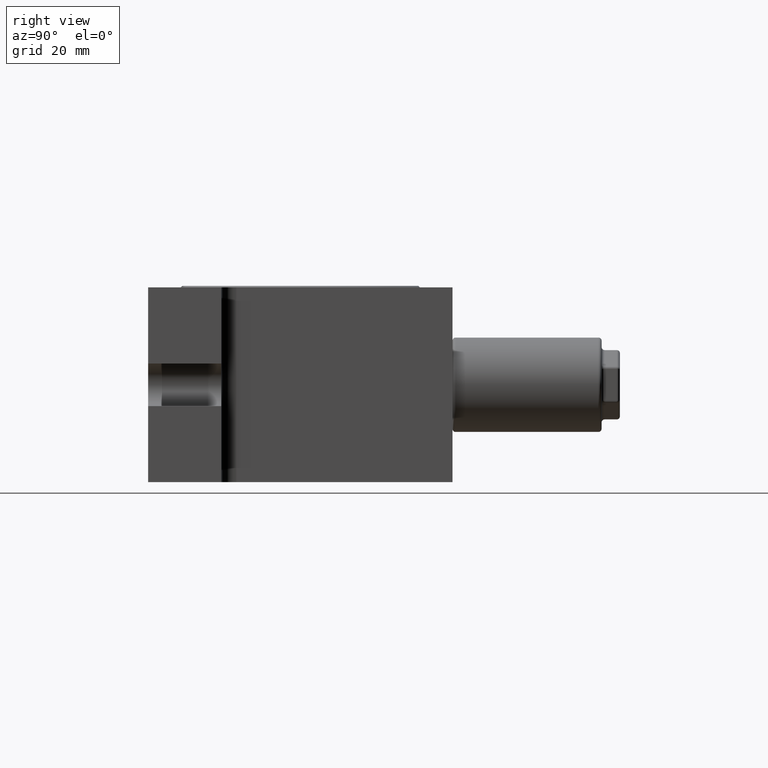
[diagram: clean part render]
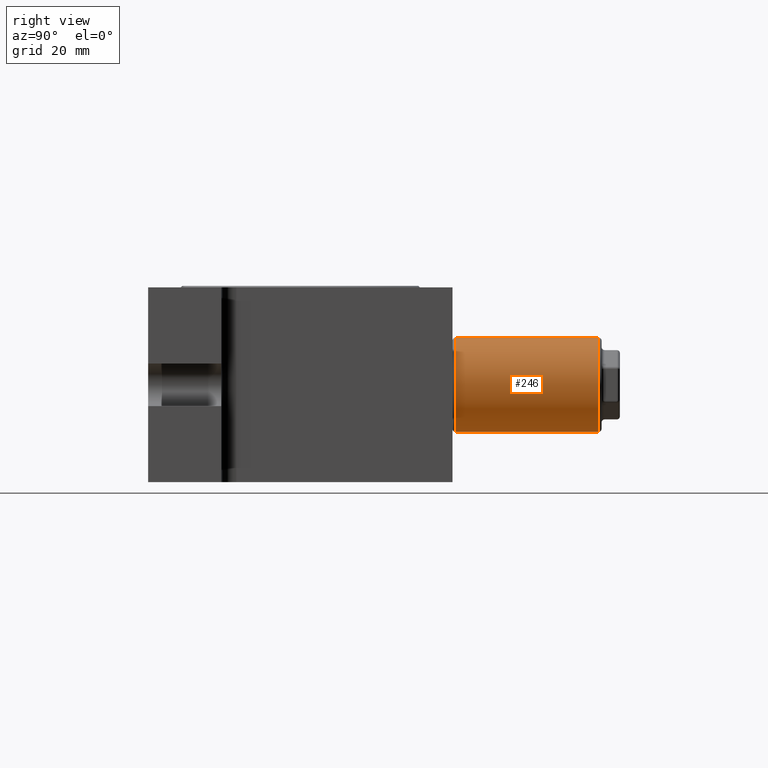
[diagram: same view with one face highlighted and labeled with its STEP entity id]
A machine part, right view. The second image highlights one B-rep face of the part: STEP entity #246.
In plain terms, the highlighted cylindrical surface (partial cylindrical patch) has radius 7.75 mm, axis along (0, -1, -0).
Its self-contained STEP definition (entity closure, byte-faithful):
#29 = CARTESIAN_POINT ( 'NONE',  ( 14.24999999999999800, 49.50000000000002100, -7.750000000000010700 ) ) ;
#123 = EDGE_CURVE ( 'NONE', #7818, #2985, #2297, .T. ) ;
#246 = ADVANCED_FACE ( 'NONE', ( #8966 ), #6481, .T. ) ;
#342 = DIRECTION ( 'NONE',  ( 5.228563909572968500E-017, -1.000000000000000000, -2.111368100172858900E-017 ) ) ;
#414 = DIRECTION ( 'NONE',  ( 2.238352872228137200E-016, 0.0000000000000000000, -1.000000000000000000 ) ) ;
#516 = AXIS2_PLACEMENT_3D ( 'NONE', #6365, #4812, #414 ) ;
#529 = LINE ( 'NONE', #29, #755 ) ;
#536 = VERTEX_POINT ( 'NONE', #8615 ) ;
#727 = EDGE_CURVE ( 'NONE', #7119, #5220, #6995, .T. ) ;
#755 = VECTOR ( 'NONE', #7493, 1000.000000000000000 ) ;
#1064 = VECTOR ( 'NONE', #8206, 1000.000000000000000 ) ;
#1212 = CARTESIAN_POINT ( 'NONE',  ( 14.24999999999998600, 49.50000000000002100, 7.750000000000007100 ) ) ;
#1244 = DIRECTION ( 'NONE',  ( 5.228563909572968500E-017, -1.000000000000000000, -2.111368100172858900E-017 ) ) ;
#1288 = DIRECTION ( 'NONE',  ( -5.228563909572968500E-017, 1.000000000000000000, 2.111368100172858900E-017 ) ) ;
#1287 = LINE ( 'NONE', #2806, #3471 ) ;
#1312 = CARTESIAN_POINT ( 'NONE',  ( 14.24999999999999500, 49.00000000000002100, 7.749999999999992900 ) ) ;
#1466 = CARTESIAN_POINT ( 'NONE',  ( 14.24999999999999800, 49.50000000000002100, -7.750000000000010700 ) ) ;
#1511 = DIRECTION ( 'NONE',  ( -2.238352872228137200E-016, 0.0000000000000000000, 1.000000000000000000 ) ) ;
#1686 = VECTOR ( 'NONE', #7782, 1000.000000000000000 ) ;
#1714 = VECTOR ( 'NONE', #8442, 1000.000000000000000 ) ;
#1770 = EDGE_CURVE ( 'NONE', #3110, #3081, #7693, .T. ) ;
#1798 = CARTESIAN_POINT ( 'NONE',  ( 14.24999999999998900, 45.00000000000002100, 7.750000000000007100 ) ) ;
#1833 = LINE ( 'NONE', #2050, #2527 ) ;
#1867 = VECTOR ( 'NONE', #2636, 1000.000000000000000 ) ;
#1939 = ORIENTED_EDGE ( 'NONE', *, *, #123, .T. ) ;
#1942 = CARTESIAN_POINT ( 'NONE',  ( 14.24999999999999800, 25.50000000000000400, -7.750000000000000000 ) ) ;
#2050 = CARTESIAN_POINT ( 'NONE',  ( 14.24999999999998600, 49.50000000000002100, 7.750000000000007100 ) ) ;
#2054 = LINE ( 'NONE', #6946, #1714 ) ;
#2066 = ORIENTED_EDGE ( 'NONE', *, *, #4244, .T. ) ;
#2118 = ORIENTED_EDGE ( 'NONE', *, *, #8167, .T. ) ;
#2216 = VERTEX_POINT ( 'NONE', #9273 ) ;
#2227 = EDGE_CURVE ( 'NONE', #3220, #7818, #2054, .T. ) ;
#2293 = VECTOR ( 'NONE', #9398, 1000.000000000000000 ) ;
#2297 = CIRCLE ( 'NONE', #4802, 7.750000000000003600 ) ;
#2350 = EDGE_CURVE ( 'NONE', #7453, #2985, #529, .T. ) ;
#2406 = CARTESIAN_POINT ( 'NONE',  ( 14.24999999999999500, 49.50000000000002100, 7.749999999999996400 ) ) ;
#2527 = VECTOR ( 'NONE', #6563, 1000.000000000000000 ) ;
#2531 = ORIENTED_EDGE ( 'NONE', *, *, #1770, .T. ) ;
#2636 = DIRECTION ( 'NONE',  ( 5.228563909572968500E-017, -1.000000000000000000, -2.111368100172858900E-017 ) ) ;
#2679 = CARTESIAN_POINT ( 'NONE',  ( 14.24999999999999800, 49.50000000000002100, -7.750000000000010700 ) ) ;
#2806 = CARTESIAN_POINT ( 'NONE',  ( 14.25000000000000400, 49.50000000000002100, -7.750000000000000000 ) ) ;
#2985 = VERTEX_POINT ( 'NONE', #1942 ) ;
#3081 = VERTEX_POINT ( 'NONE', #8009 ) ;
#3110 = VERTEX_POINT ( 'NONE', #7292 ) ;
#3168 = VECTOR ( 'NONE', #342, 1000.000000000000000 ) ;
#3220 = VERTEX_POINT ( 'NONE', #3454 ) ;
#3349 = CARTESIAN_POINT ( 'NONE',  ( 14.24999999999999800, 49.50000000000002100, -7.750000000000010700 ) ) ;
#3393 = EDGE_CURVE ( 'NONE', #8111, #5127, #4524, .T. ) ;
#3454 = CARTESIAN_POINT ( 'NONE',  ( 14.24999999999998600, 31.00000000000000700, 7.749999999999985800 ) ) ;
#3471 = VECTOR ( 'NONE', #8049, 1000.000000000000000 ) ;
#3482 = ORIENTED_EDGE ( 'NONE', *, *, #2227, .T. ) ;
#3491 = CARTESIAN_POINT ( 'NONE',  ( 14.24999999999999300, 45.00000000000002100, -7.750000000000000000 ) ) ;
#3910 = ORIENTED_EDGE ( 'NONE', *, *, #9503, .F. ) ;
#3981 = CARTESIAN_POINT ( 'NONE',  ( 14.25000000000000400, 49.50000000000002100, -7.750000000000000000 ) ) ;
#4047 = EDGE_CURVE ( 'NONE', #5220, #8388, #6562, .T. ) ;
#4244 = EDGE_CURVE ( 'NONE', #7453, #2216, #8805, .T. ) ;
#4246 = LINE ( 'NONE', #8750, #2293 ) ;
#4307 = AXIS2_PLACEMENT_3D ( 'NONE', #7405, #7479, #1511 ) ;
#4308 = DIRECTION ( 'NONE',  ( 2.238352872228137200E-016, 0.0000000000000000000, -1.000000000000000000 ) ) ;
#4524 = LINE ( 'NONE', #5183, #1064 ) ;
#4598 = ORIENTED_EDGE ( 'NONE', *, *, #3393, .F. ) ;
#4618 = VERTEX_POINT ( 'NONE', #1312 ) ;
#4755 = CARTESIAN_POINT ( 'NONE',  ( 14.24999999999999800, 49.00000000000002100, -7.750000000000007100 ) ) ;
#4802 = AXIS2_PLACEMENT_3D ( 'NONE', #6570, #1288, #4308 ) ;
#4812 = DIRECTION ( 'NONE',  ( 5.228563909572968500E-017, -1.000000000000000000, -2.111368100172858900E-017 ) ) ;
#4958 = VECTOR ( 'NONE', #5136, 1000.000000000000000 ) ;
#4959 = CIRCLE ( 'NONE', #516, 7.750000000000003600 ) ;
#4992 = VECTOR ( 'NONE', #9043, 1000.000000000000000 ) ;
#5127 = VERTEX_POINT ( 'NONE', #1798 ) ;
#5136 = DIRECTION ( 'NONE',  ( 5.228563909572968500E-017, -1.000000000000000000, -2.111368100172858900E-017 ) ) ;
#5183 = CARTESIAN_POINT ( 'NONE',  ( 14.24999999999998600, 49.50000000000002100, 7.750000000000007100 ) ) ;
#5220 = VERTEX_POINT ( 'NONE', #8258 ) ;
#5284 = VECTOR ( 'NONE', #6792, 1000.000000000000000 ) ;
#5651 = VERTEX_POINT ( 'NONE', #4755 ) ;
#5717 = EDGE_CURVE ( 'NONE', #5651, #4618, #4959, .T. ) ;
#5842 = VERTEX_POINT ( 'NONE', #3491 ) ;
#5867 = CARTESIAN_POINT ( 'NONE',  ( 14.24999999999999500, 49.50000000000002100, 7.749999999999996400 ) ) ;
#5878 = EDGE_CURVE ( 'NONE', #8111, #536, #4246, .T. ) ;
#5962 = CARTESIAN_POINT ( 'NONE',  ( 14.24999999999999300, 37.00000000000001400, -7.750000000000000000 ) ) ;
#5971 = CARTESIAN_POINT ( 'NONE',  ( 14.24999999999999500, 25.50000000000000400, 7.750000000000000000 ) ) ;
#5989 = VECTOR ( 'NONE', #8876, 1000.000000000000000 ) ;
#6308 = EDGE_CURVE ( 'NONE', #4618, #5127, #7290, .T. ) ;
#6365 = CARTESIAN_POINT ( 'NONE',  ( 14.24999999999999600, 49.00000000000002100, -6.938893903907228400E-015 ) ) ;
#6373 = CARTESIAN_POINT ( 'NONE',  ( 14.24999999999998900, 43.00000000000001400, 7.750000000000000000 ) ) ;
#6377 = ORIENTED_EDGE ( 'NONE', *, *, #6308, .T. ) ;
#6481 = CYLINDRICAL_SURFACE ( 'NONE', #4307, 7.750000000000003600 ) ;
#6562 = LINE ( 'NONE', #3981, #1686 ) ;
#6563 = DIRECTION ( 'NONE',  ( -5.228563909572968500E-017, 1.000000000000000000, 2.111368100172858900E-017 ) ) ;
#6570 = CARTESIAN_POINT ( 'NONE',  ( 14.25000000000000000, 25.50000000000000400, 0.0000000000000000000 ) ) ;
#6682 = ORIENTED_EDGE ( 'NONE', *, *, #5878, .T. ) ;
#6733 = ORIENTED_EDGE ( 'NONE', *, *, #7061, .F. ) ;
#6740 = CARTESIAN_POINT ( 'NONE',  ( 14.24999999999999300, 31.00000000000000700, -7.750000000000000000 ) ) ;
#6792 = DIRECTION ( 'NONE',  ( 5.228563909572968500E-017, -1.000000000000000000, -2.111368100172858900E-017 ) ) ;
#6946 = CARTESIAN_POINT ( 'NONE',  ( 14.24999999999999500, 49.50000000000002100, 7.749999999999996400 ) ) ;
#6995 = LINE ( 'NONE', #1466, #4992 ) ;
#7061 = EDGE_CURVE ( 'NONE', #5651, #5842, #7387, .T. ) ;
#7119 = VERTEX_POINT ( 'NONE', #9352 ) ;
#7215 = ORIENTED_EDGE ( 'NONE', *, *, #7724, .F. ) ;
#7290 = LINE ( 'NONE', #2406, #5284 ) ;
#7292 = CARTESIAN_POINT ( 'NONE',  ( 14.24999999999998400, 37.00000000000001400, 7.750000000000000000 ) ) ;
#7305 = ORIENTED_EDGE ( 'NONE', *, *, #4047, .F. ) ;
#7387 = LINE ( 'NONE', #2679, #3168 ) ;
#7405 = CARTESIAN_POINT ( 'NONE',  ( 14.24999999999999600, 49.50000000000002100, -6.938893903907228400E-015 ) ) ;
#7453 = VERTEX_POINT ( 'NONE', #6740 ) ;
#7479 = DIRECTION ( 'NONE',  ( 5.228563909572968500E-017, -1.000000000000000000, -2.111368100172858900E-017 ) ) ;
#7493 = DIRECTION ( 'NONE',  ( 5.228563909572968500E-017, -1.000000000000000000, -2.111368100172858900E-017 ) ) ;
#7664 = ORIENTED_EDGE ( 'NONE', *, *, #727, .F. ) ;
#7693 = LINE ( 'NONE', #5867, #4958 ) ;
#7724 = EDGE_CURVE ( 'NONE', #8388, #2216, #8288, .T. ) ;
#7782 = DIRECTION ( 'NONE',  ( 5.228563909572968500E-017, -1.000000000000000000, -2.111368100172858900E-017 ) ) ;
#7818 = VERTEX_POINT ( 'NONE', #5971 ) ;
#8009 = CARTESIAN_POINT ( 'NONE',  ( 14.24999999999998900, 33.00000000000000700, 7.750000000000014200 ) ) ;
#8049 = DIRECTION ( 'NONE',  ( 5.228563909572968500E-017, -1.000000000000000000, -2.111368100172858900E-017 ) ) ;
#8099 = CARTESIAN_POINT ( 'NONE',  ( 14.25000000000000400, 49.50000000000002100, -7.750000000000000000 ) ) ;
#8111 = VERTEX_POINT ( 'NONE', #6373 ) ;
#8139 = VECTOR ( 'NONE', #1244, 1000.000000000000000 ) ;
#8167 = EDGE_CURVE ( 'NONE', #3081, #3220, #8861, .T. ) ;
#8206 = DIRECTION ( 'NONE',  ( -5.228563909572968500E-017, 1.000000000000000000, 2.111368100172858900E-017 ) ) ;
#8220 = EDGE_CURVE ( 'NONE', #3110, #536, #1833, .T. ) ;
#8258 = CARTESIAN_POINT ( 'NONE',  ( 14.24999999999999300, 39.00000000000001400, -7.750000000000000000 ) ) ;
#8288 = LINE ( 'NONE', #3349, #1867 ) ;
#8388 = VERTEX_POINT ( 'NONE', #5962 ) ;
#8442 = DIRECTION ( 'NONE',  ( 5.228563909572968500E-017, -1.000000000000000000, -2.111368100172858900E-017 ) ) ;
#8615 = CARTESIAN_POINT ( 'NONE',  ( 14.24999999999998400, 39.00000000000001400, 7.750000000000007100 ) ) ;
#8750 = CARTESIAN_POINT ( 'NONE',  ( 14.24999999999999500, 49.50000000000002100, 7.749999999999996400 ) ) ;
#8805 = LINE ( 'NONE', #8099, #5989 ) ;
#8861 = LINE ( 'NONE', #1212, #8139 ) ;
#8876 = DIRECTION ( 'NONE',  ( -5.228563909572968500E-017, 1.000000000000000000, 2.111368100172858900E-017 ) ) ;
#8952 = ORIENTED_EDGE ( 'NONE', *, *, #8220, .F. ) ;
#8966 = FACE_OUTER_BOUND ( 'NONE', #9587, .T. ) ;
#9043 = DIRECTION ( 'NONE',  ( 5.228563909572968500E-017, -1.000000000000000000, -2.111368100172858900E-017 ) ) ;
#9222 = ORIENTED_EDGE ( 'NONE', *, *, #2350, .F. ) ;
#9273 = CARTESIAN_POINT ( 'NONE',  ( 14.25000000000000000, 33.00000000000000700, -7.749999999999985800 ) ) ;
#9352 = CARTESIAN_POINT ( 'NONE',  ( 14.24999999999999300, 43.00000000000001400, -7.750000000000007100 ) ) ;
#9398 = DIRECTION ( 'NONE',  ( 5.228563909572968500E-017, -1.000000000000000000, -2.111368100172858900E-017 ) ) ;
#9503 = EDGE_CURVE ( 'NONE', #5842, #7119, #1287, .T. ) ;
#9587 = EDGE_LOOP ( 'NONE', ( #6733, #9701, #6377, #4598, #6682, #8952, #2531, #2118, #3482, #1939, #9222, #2066, #7215, #7305, #7664, #3910 ) ) ;
#9701 = ORIENTED_EDGE ( 'NONE', *, *, #5717, .T. ) ;